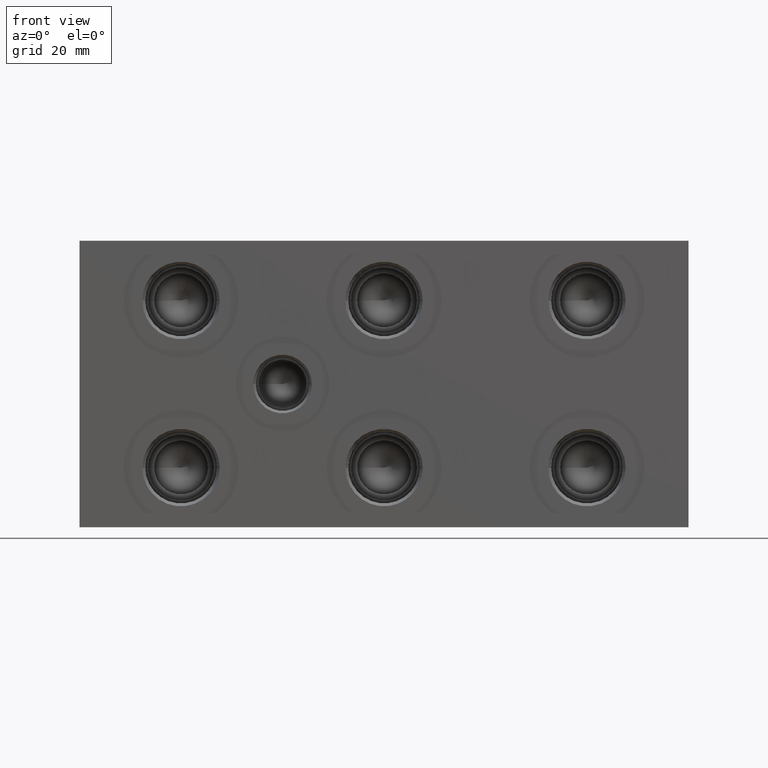
[diagram: clean part render]
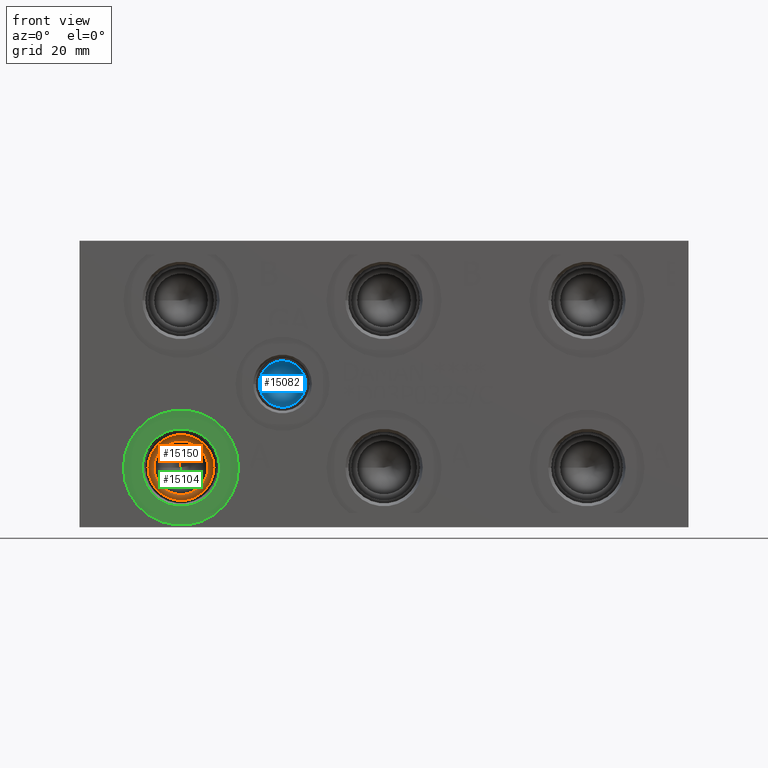
[diagram: same view with three faces highlighted in distinct colors, each labeled with its STEP entity id]
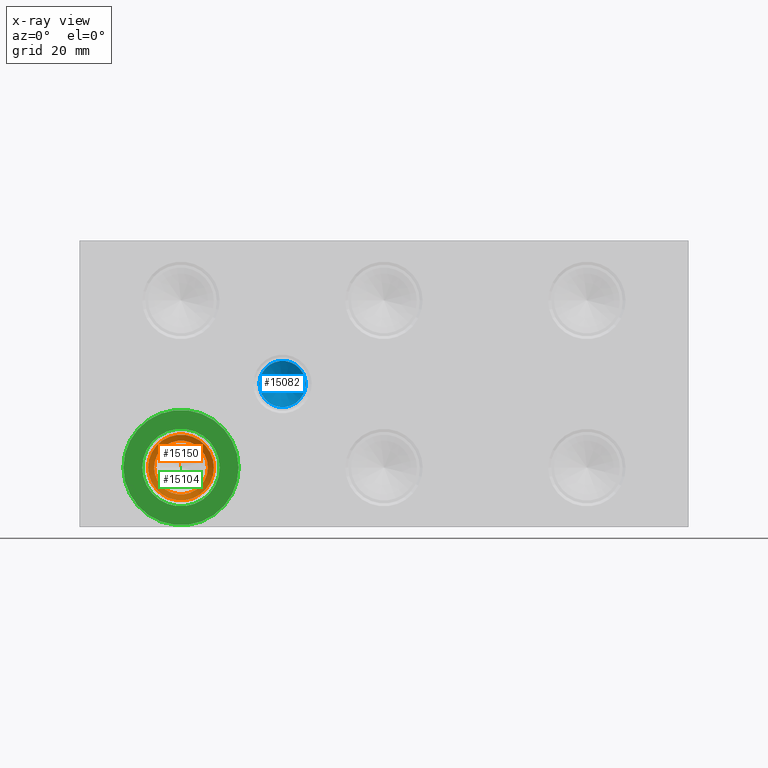
[diagram: x-ray of the same camera — body ghosted, the three highlighted faces saturated]
A machine part, front view with three faces highlighted in distinct colors.
The next image is the same camera in x-ray (body ghosted, the three faces saturated) — at least one of them is partly hidden behind the body in this view.
Their STEP definitions:

[orange] entity #15150 — the highlighted conical surface has half-angle 66 deg.
#71=CONICAL_SURFACE('',#16057,4.37515,1.15191730631626);
#501=CIRCLE('',#16046,7.1501);
#508=CIRCLE('',#16058,8.7503);
#509=CIRCLE('',#16059,8.7503);
#2063=FACE_OUTER_BOUND('',#2943,.T.);
#2943=EDGE_LOOP('',(#13072,#13073,#13074,#13075,#13076));
#4310=LINE('',#26186,#5617);
#5617=VECTOR('',#19129,4.37515);
#7022=VERTEX_POINT('',#26160);
#7029=VERTEX_POINT('',#26183);
#7030=VERTEX_POINT('',#26184);
#9089=EDGE_CURVE('',#7022,#7022,#501,.T.);
#9100=EDGE_CURVE('',#7029,#7030,#508,.T.);
#9101=EDGE_CURVE('',#7030,#7022,#4310,.T.);
#9102=EDGE_CURVE('',#7030,#7029,#509,.T.);
#13072=ORIENTED_EDGE('',*,*,#9100,.T.);
#13073=ORIENTED_EDGE('',*,*,#9101,.T.);
#13074=ORIENTED_EDGE('',*,*,#9089,.T.);
#13075=ORIENTED_EDGE('',*,*,#9101,.F.);
#13076=ORIENTED_EDGE('',*,*,#9102,.T.);
#15150=ADVANCED_FACE('',(#2063),#71,.F.);
#16046=AXIS2_PLACEMENT_3D('',#26161,#19099,#19100);
#16057=AXIS2_PLACEMENT_3D('',#26182,#19125,#19126);
#16058=AXIS2_PLACEMENT_3D('',#26185,#19127,#19128);
#16059=AXIS2_PLACEMENT_3D('',#26187,#19130,#19131);
#19099=DIRECTION('center_axis',(0.,1.,0.));
#19100=DIRECTION('ref_axis',(1.,0.,0.));
#19125=DIRECTION('center_axis',(0.,-1.,0.));
#19126=DIRECTION('ref_axis',(1.,0.,0.));
#19127=DIRECTION('center_axis',(0.,-1.,0.));
#19128=DIRECTION('ref_axis',(1.,0.,0.));
#19129=DIRECTION('',(0.913545457642601,0.4067366430758,1.11877052057761E-16));
#19130=DIRECTION('center_axis',(0.,-1.,0.));
#19131=DIRECTION('ref_axis',(1.,0.,0.));
#26160=CARTESIAN_POINT('',(19.8247,19.0004549422307,15.875));
#26161=CARTESIAN_POINT('Origin',(26.9748,19.0004549422307,15.875));
#26182=CARTESIAN_POINT('Origin',(26.9748,20.2359422825276,15.875));
#26183=CARTESIAN_POINT('',(35.7251,18.288,15.875));
#26184=CARTESIAN_POINT('',(18.2245,18.288,15.875));
#26185=CARTESIAN_POINT('Origin',(26.9748,18.288,15.875));
#26186=CARTESIAN_POINT('',(22.59965,20.2359422825276,15.875));
#26187=CARTESIAN_POINT('Origin',(26.9748,18.288,15.875));

[blue] entity #15082 — the highlighted conical surface has half-angle 60 deg.
#46=CONICAL_SURFACE('',#15883,3.0734,1.0471975511966);
#402=CIRCLE('',#15884,6.1468);
#403=CIRCLE('',#15885,6.1468);
#1995=FACE_OUTER_BOUND('',#2863,.T.);
#2863=EDGE_LOOP('',(#12739,#12740,#12741,#12742));
#4254=LINE('',#25844,#5561);
#5561=VECTOR('',#18725,3.0734);
#6916=VERTEX_POINT('',#25840);
#6917=VERTEX_POINT('',#25841);
#6918=VERTEX_POINT('',#25843);
#8938=EDGE_CURVE('',#6916,#6917,#402,.T.);
#8939=EDGE_CURVE('',#6917,#6918,#4254,.T.);
#8940=EDGE_CURVE('',#6917,#6916,#403,.T.);
#12739=ORIENTED_EDGE('',*,*,#8938,.T.);
#12740=ORIENTED_EDGE('',*,*,#8939,.T.);
#12741=ORIENTED_EDGE('',*,*,#8939,.F.);
#12742=ORIENTED_EDGE('',*,*,#8940,.T.);
#15082=ADVANCED_FACE('',(#1995),#46,.F.);
#15883=AXIS2_PLACEMENT_3D('',#25839,#18721,#18722);
#15884=AXIS2_PLACEMENT_3D('',#25842,#18723,#18724);
#15885=AXIS2_PLACEMENT_3D('',#25845,#18726,#18727);
#18721=DIRECTION('center_axis',(0.,-1.,0.));
#18722=DIRECTION('ref_axis',(1.,0.,0.));
#18723=DIRECTION('center_axis',(0.,-1.,0.));
#18724=DIRECTION('ref_axis',(1.,0.,0.));
#18725=DIRECTION('',(0.866025403784438,0.5,1.06057523872491E-16));
#18726=DIRECTION('center_axis',(0.,-1.,0.));
#18727=DIRECTION('ref_axis',(1.,0.,0.));
#25839=CARTESIAN_POINT('Origin',(53.975,21.7396783173274,38.1));
#25840=CARTESIAN_POINT('',(60.1218,19.96525,38.1));
#25841=CARTESIAN_POINT('',(47.8282,19.96525,38.1));
#25842=CARTESIAN_POINT('Origin',(53.975,19.96525,38.1));
#25843=CARTESIAN_POINT('',(53.975,23.5141066346548,38.1));
#25844=CARTESIAN_POINT('',(50.9016,21.7396783173274,38.1));
#25845=CARTESIAN_POINT('Origin',(53.975,19.96525,38.1));

[green] entity #15104 — the highlighted planar face has unit normal (0, 1, 0).
#437=CIRCLE('',#15940,15.3162);
#438=CIRCLE('',#15941,15.3162);
#439=CIRCLE('',#15943,10.2997);
#440=CIRCLE('',#15944,10.2997);
#697=FACE_BOUND('',#2890,.T.);
#2017=FACE_OUTER_BOUND('',#2889,.T.);
#2889=EDGE_LOOP('',(#12853,#12854));
#2890=EDGE_LOOP('',(#12855,#12856));
#6952=VERTEX_POINT('',#25949);
#6953=VERTEX_POINT('',#25951);
#6954=VERTEX_POINT('',#25955);
#6955=VERTEX_POINT('',#25956);
#8991=EDGE_CURVE('',#6952,#6953,#437,.T.);
#8992=EDGE_CURVE('',#6953,#6952,#438,.T.);
#8993=EDGE_CURVE('',#6954,#6955,#439,.T.);
#8994=EDGE_CURVE('',#6955,#6954,#440,.T.);
#12853=ORIENTED_EDGE('',*,*,#8992,.F.);
#12854=ORIENTED_EDGE('',*,*,#8991,.F.);
#12855=ORIENTED_EDGE('',*,*,#8993,.T.);
#12856=ORIENTED_EDGE('',*,*,#8994,.T.);
#13873=PLANE('',#15942);
#15104=ADVANCED_FACE('',(#2017,#697),#13873,.F.);
#15940=AXIS2_PLACEMENT_3D('',#25952,#18853,#18854);
#15941=AXIS2_PLACEMENT_3D('',#25953,#18855,#18856);
#15942=AXIS2_PLACEMENT_3D('',#25954,#18857,#18858);
#15943=AXIS2_PLACEMENT_3D('',#25957,#18859,#18860);
#15944=AXIS2_PLACEMENT_3D('',#25958,#18861,#18862);
#18853=DIRECTION('center_axis',(0.,1.,0.));
#18854=DIRECTION('ref_axis',(1.,0.,0.));
#18855=DIRECTION('center_axis',(0.,1.,0.));
#18856=DIRECTION('ref_axis',(1.,0.,0.));
#18857=DIRECTION('center_axis',(0.,1.,0.));
#18858=DIRECTION('ref_axis',(0.,0.,1.));
#18859=DIRECTION('center_axis',(0.,1.,0.));
#18860=DIRECTION('ref_axis',(1.,0.,0.));
#18861=DIRECTION('center_axis',(0.,1.,0.));
#18862=DIRECTION('ref_axis',(1.,0.,0.));
#25949=CARTESIAN_POINT('',(11.6586,0.7874,15.875));
#25951=CARTESIAN_POINT('',(42.291,0.7874,15.875));
#25952=CARTESIAN_POINT('Origin',(26.9748,0.7874,15.875));
#25953=CARTESIAN_POINT('Origin',(26.9748,0.7874,15.875));
#25954=CARTESIAN_POINT('Origin',(37.2745,0.7874,15.875));
#25955=CARTESIAN_POINT('',(37.2745,0.7874,15.875));
#25956=CARTESIAN_POINT('',(16.6751,0.7874,15.875));
#25957=CARTESIAN_POINT('Origin',(26.9748,0.7874,15.875));
#25958=CARTESIAN_POINT('Origin',(26.9748,0.7874,15.875));